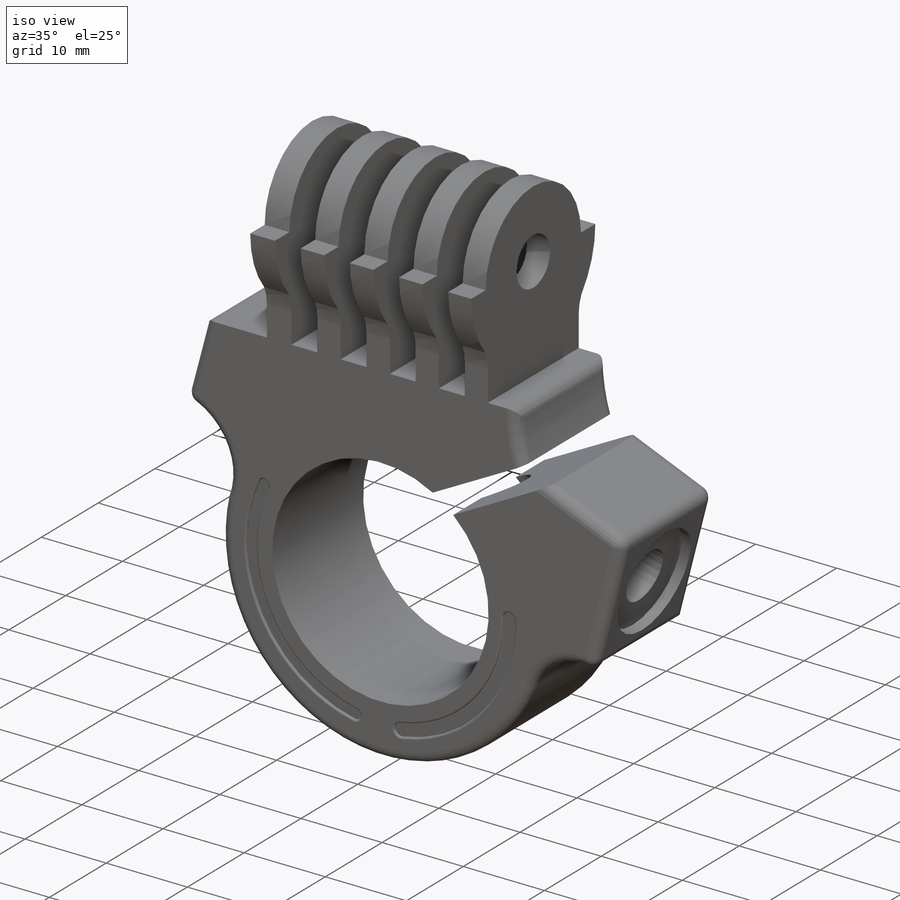
[diagram: iso view]
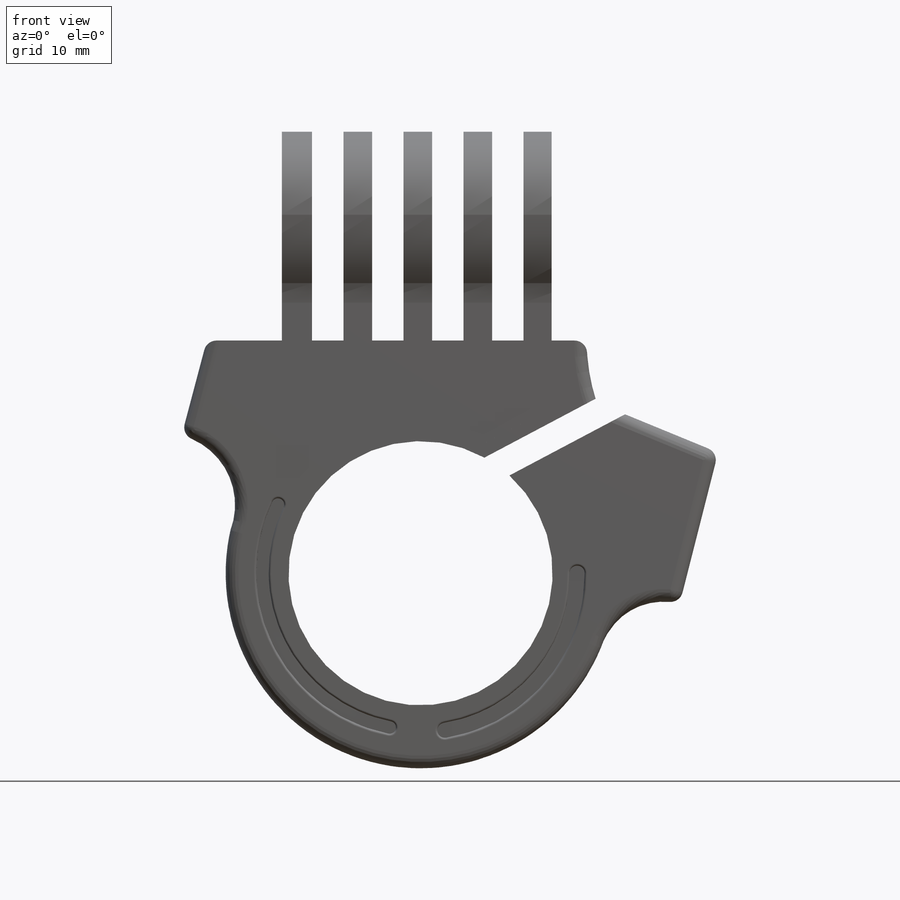
[diagram: front view]
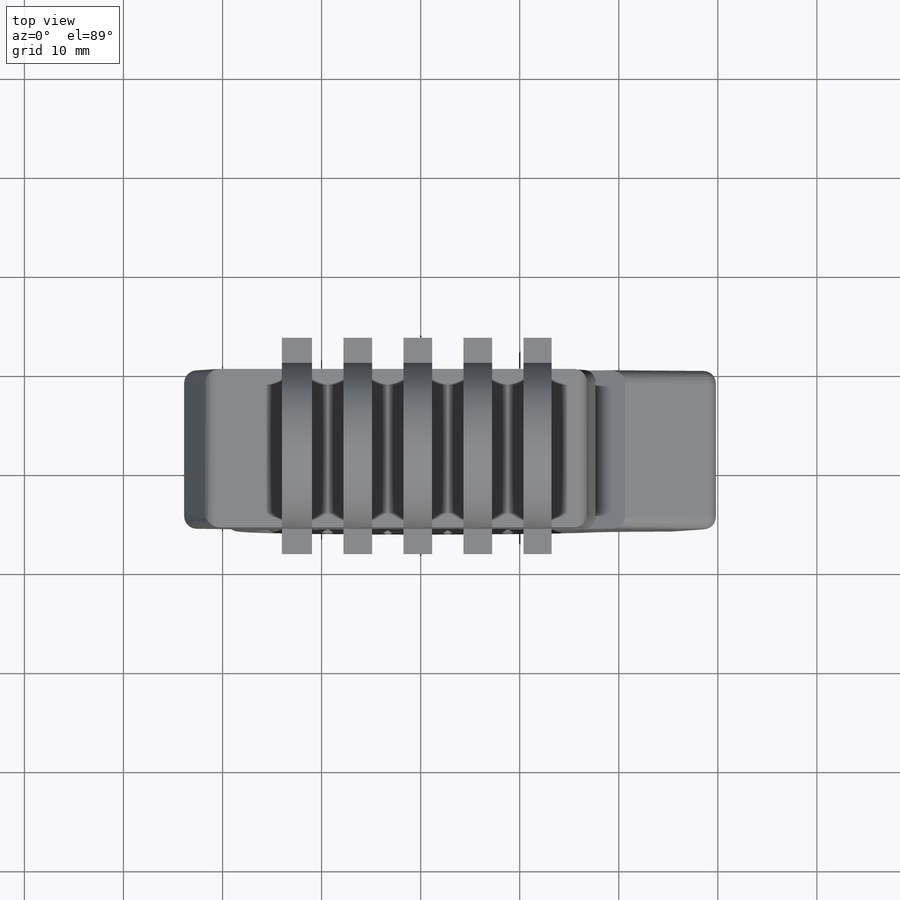
[diagram: top view]
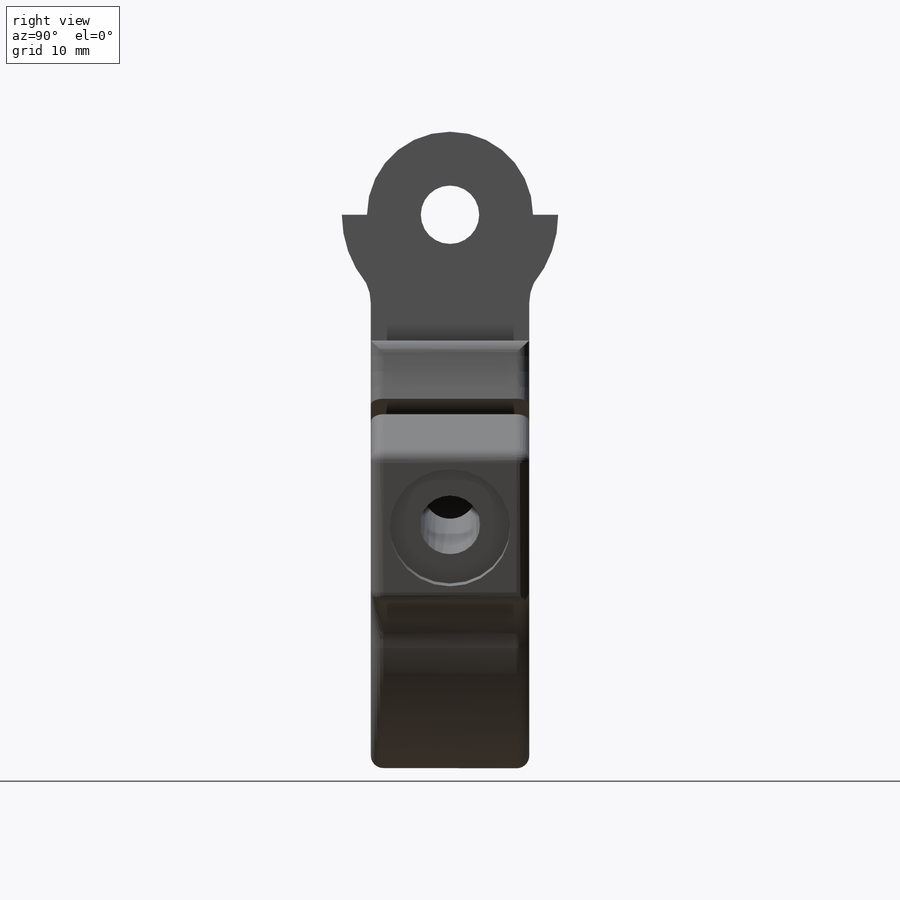
[diagram: right view]
SOLIDWORKS PART (.sldprt)
format: sldprt  version: not decoded by parser v0  size: 632,832 bytes
history: native  units: mm
features: sketch x14, extrude x8, cut_extrude x6, fillet x2, material x1, shell x1 (+11 scaffold rows collapsed)
feature tree (43):
  scaffold x11  (default folders/planes/origin — collapsed)
  material  "Material <not specified>"
  sketch  "Sketch1"  dims[D1=6.35mm]
  extrude  "Extrude1"  Depth=16.002mm
  fillet  "Fillet1"  Radius=1.27mm
  sketch  "Sketch2"  dims[D1=6.096mm]
  cut_extrude  "Extrude2"  Depth=40.132mm
  sketch  "Sketch3"  dims[D1=~4.964348mm]
  cut_extrude  "Extrude3"  Depth=1.1684mm
  sketch  "Sketch4"  dims[D1=0.762mm]
  cut_extrude  "Extrude4"  Depth=0.254mm
  fillet  "Fillet4"  Radius=0.2286mm
  shell  "Shell5"  Thickness=2.54mm
  sketch  "Sketch6"
  cut_extrude  "Extrude6"  [1 undecoded]
  sketch  "Sketch7"  dims[D1=3.175mm]
  extrude  "Extrude7"  Depth=3.81mm
  sketch  "Sketch9"  dims[D1=21.844mm]
  extrude  "Extrude8"  [1 undecoded]
  sketch  "Sketch10"
  extrude  "Extrude9"  [1 undecoded]
  sketch  "Sketch12"
  extrude  "Extrude11"  [1 undecoded]
  sketch  "Sketch13"
  extrude  "Extrude12"  [1 undecoded]
  sketch  "Sketch14"
  extrude  "Extrude13"  [1 undecoded]
  sketch  "Sketch15"
  extrude  "Extrude14"  [1 undecoded]
  sketch  "Sketch16"  dims[D1=2.54mm]
  cut_extrude  "Extrude15"  [1 undecoded]
  sketch  "Sketch17"  dims[D1=~3.080006mm]
  cut_extrude  "Extrude16"  [1 undecoded]
decode coverage: 16 of 31 modeling features carry decoded parameters
note: ~ marks probable driven/reference dimensions
note: 9 parameter values undecoded
summary: no parameter record found for 9 features
note: suppression state not decoded; provenance and decode notes live in map.json
